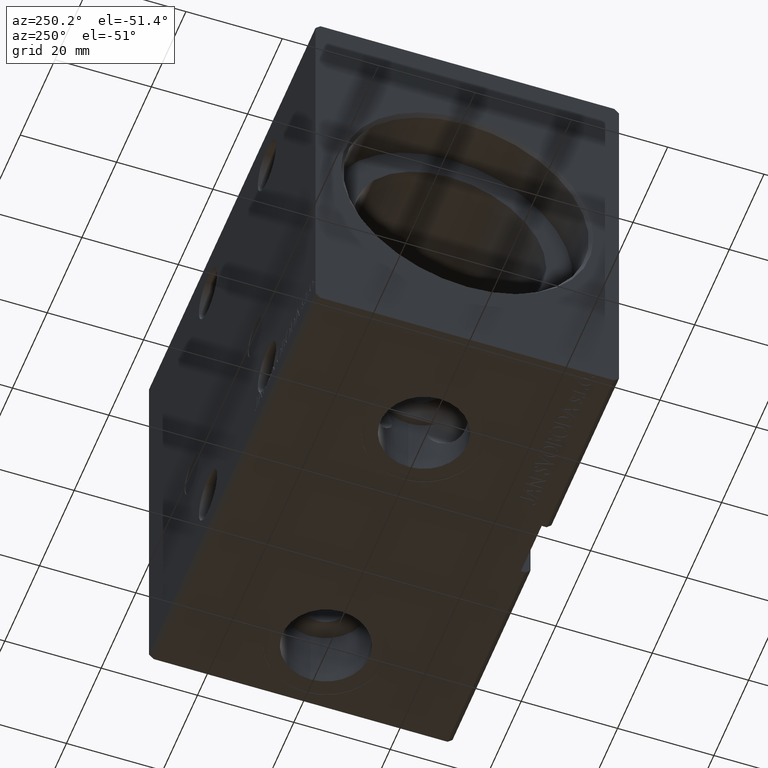
[diagram: clean part render]
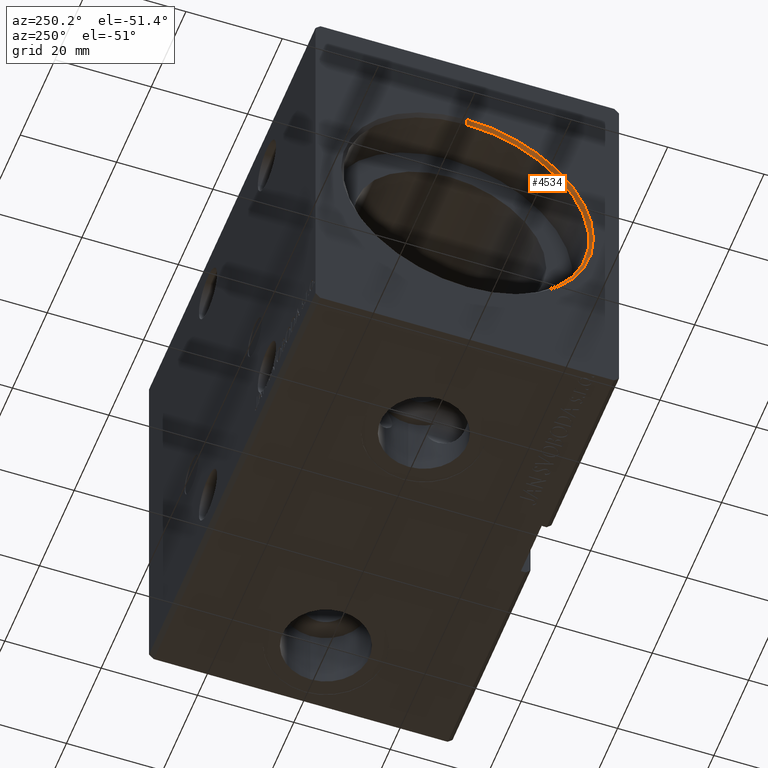
[diagram: same view with one face highlighted and labeled with its STEP entity id]
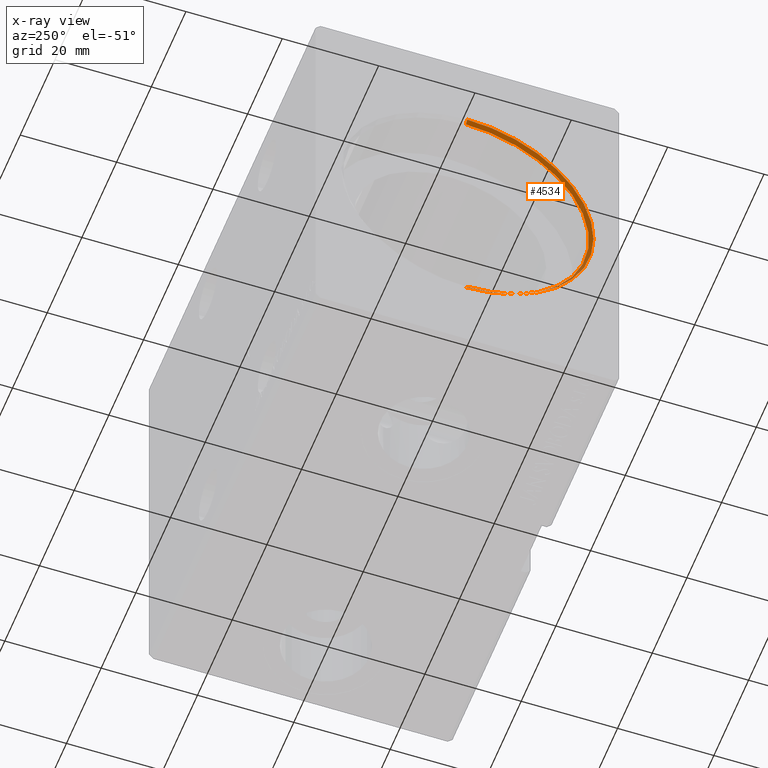
[diagram: x-ray of the same camera — body ghosted, the highlighted face saturated]
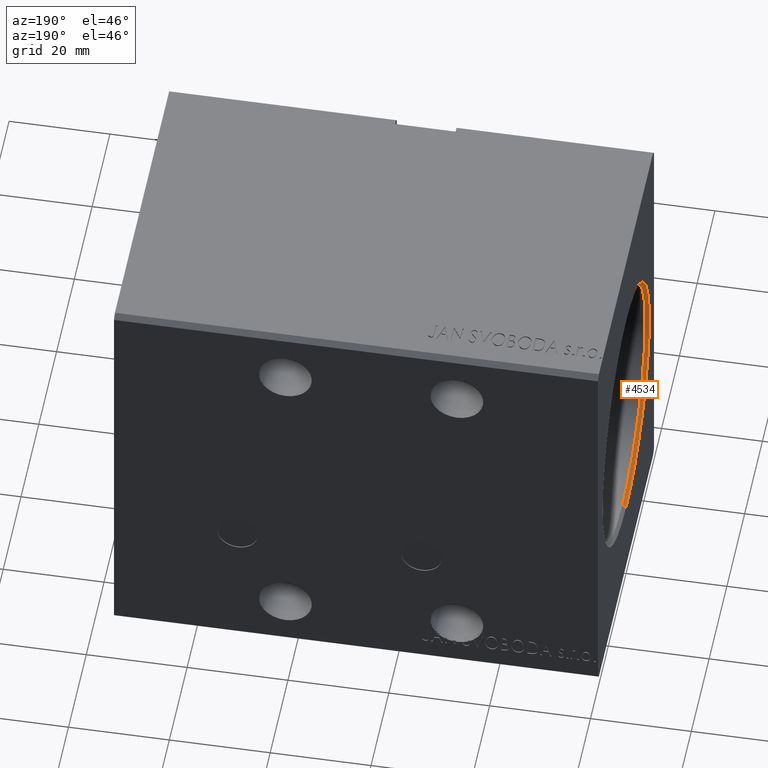
[diagram: same view with one face highlighted and labeled with its STEP entity id]
A machine part, auxiliary view. The second image highlights one B-rep face of the part: STEP entity #4534.
The next image is the same camera in x-ray: the body ghosted, the highlighted face saturated — about 0% of this face is hidden behind the body in this view.
A second angle (auxiliary view) of the same face is appended — the face is thin or edge-on in the first view.
In plain terms, the highlighted conical surface has half-angle 45 deg.
Its self-contained STEP definition (entity closure, byte-faithful):
#744 = ORIENTED_EDGE ( 'NONE', *, *, #23318, .F. ) ;
#1740 = EDGE_CURVE ( 'NONE', #38981, #8133, #29697, .T. ) ;
#3681 = EDGE_LOOP ( 'NONE', ( #744, #9848, #31993, #7998 ) ) ;
#4534 = ADVANCED_FACE ( 'NONE', ( #23091 ), #20132, .F. ) ;
#5003 = CIRCLE ( 'NONE', #33392, 26.19999999999998863 ) ;
#6137 = DIRECTION ( 'NONE',  ( -1.000000000000000000, 0.000000000000000000, 0.000000000000000000 ) ) ;
#7998 = ORIENTED_EDGE ( 'NONE', *, *, #1740, .F. ) ;
#8133 = VERTEX_POINT ( 'NONE', #34987 ) ;
#9578 = AXIS2_PLACEMENT_3D ( 'NONE', #26594, #25986, #30465 ) ;
#9848 = ORIENTED_EDGE ( 'NONE', *, *, #28732, .T. ) ;
#9935 = DIRECTION ( 'NONE',  ( 1.000000000000000000, 0.000000000000000000, 0.000000000000000000 ) ) ;
#10343 = DIRECTION ( 'NONE',  ( 0.000000000000000000, 0.000000000000000000, -1.000000000000000000 ) ) ;
#11402 = CARTESIAN_POINT ( 'NONE',  ( 0.6999999999999784173, 0.000000000000000000, 25.50000000000000000 ) ) ;
#12711 = VERTEX_POINT ( 'NONE', #26540 ) ;
#14565 = LINE ( 'NONE', #39820, #15493 ) ;
#15493 = VECTOR ( 'NONE', #27175, 1000.000000000000000 ) ;
#19654 = CARTESIAN_POINT ( 'NONE',  ( 0.000000000000000000, 0.000000000000000000, 0.000000000000000000 ) ) ;
#19982 = CARTESIAN_POINT ( 'NONE',  ( 0.6999999999999784173, 0.000000000000000000, 25.50000000000000000 ) ) ;
#20132 = CONICAL_SURFACE ( 'NONE', #9578, 25.50000000000000000, 0.7853981633974557175 ) ;
#21762 = CIRCLE ( 'NONE', #23082, 25.50000000000000000 ) ;
#23082 = AXIS2_PLACEMENT_3D ( 'NONE', #34490, #6137, #40711 ) ;
#23091 = FACE_OUTER_BOUND ( 'NONE', #3681, .T. ) ;
#23318 = EDGE_CURVE ( 'NONE', #12711, #38981, #21762, .T. ) ;
#23468 = VECTOR ( 'NONE', #26794, 1000.000000000000000 ) ;
#24700 = VERTEX_POINT ( 'NONE', #29427 ) ;
#25986 = DIRECTION ( 'NONE',  ( -1.000000000000000000, 0.000000000000000000, 0.000000000000000000 ) ) ;
#26540 = CARTESIAN_POINT ( 'NONE',  ( 0.6999999999999784173, 3.122849337825750222E-15, -25.50000000000000000 ) ) ;
#26594 = CARTESIAN_POINT ( 'NONE',  ( 0.6999999999999784173, 0.000000000000000000, 0.000000000000000000 ) ) ;
#26794 = DIRECTION ( 'NONE',  ( -0.7071067811865422437, 0.000000000000000000, 0.7071067811865527908 ) ) ;
#27175 = DIRECTION ( 'NONE',  ( -0.7071067811865422437, 8.659560562354996953E-17, -0.7071067811865527908 ) ) ;
#28732 = EDGE_CURVE ( 'NONE', #12711, #24700, #14565, .T. ) ;
#29427 = CARTESIAN_POINT ( 'NONE',  ( 0.000000000000000000, 3.208574613766063722E-15, -26.19999999999998863 ) ) ;
#29697 = LINE ( 'NONE', #19982, #23468 ) ;
#30465 = DIRECTION ( 'NONE',  ( 0.000000000000000000, 0.000000000000000000, 1.000000000000000000 ) ) ;
#31993 = ORIENTED_EDGE ( 'NONE', *, *, #37085, .F. ) ;
#33392 = AXIS2_PLACEMENT_3D ( 'NONE', #19654, #9935, #10343 ) ;
#34490 = CARTESIAN_POINT ( 'NONE',  ( 0.6999999999999784173, 0.000000000000000000, 0.000000000000000000 ) ) ;
#34987 = CARTESIAN_POINT ( 'NONE',  ( 0.000000000000000000, 0.000000000000000000, 26.19999999999998863 ) ) ;
#37085 = EDGE_CURVE ( 'NONE', #8133, #24700, #5003, .T. ) ;
#38981 = VERTEX_POINT ( 'NONE', #11402 ) ;
#39820 = CARTESIAN_POINT ( 'NONE',  ( 0.6999999999999784173, 3.122849337825750222E-15, -25.50000000000000000 ) ) ;
#40711 = DIRECTION ( 'NONE',  ( 0.000000000000000000, 0.000000000000000000, -1.000000000000000000 ) ) ;